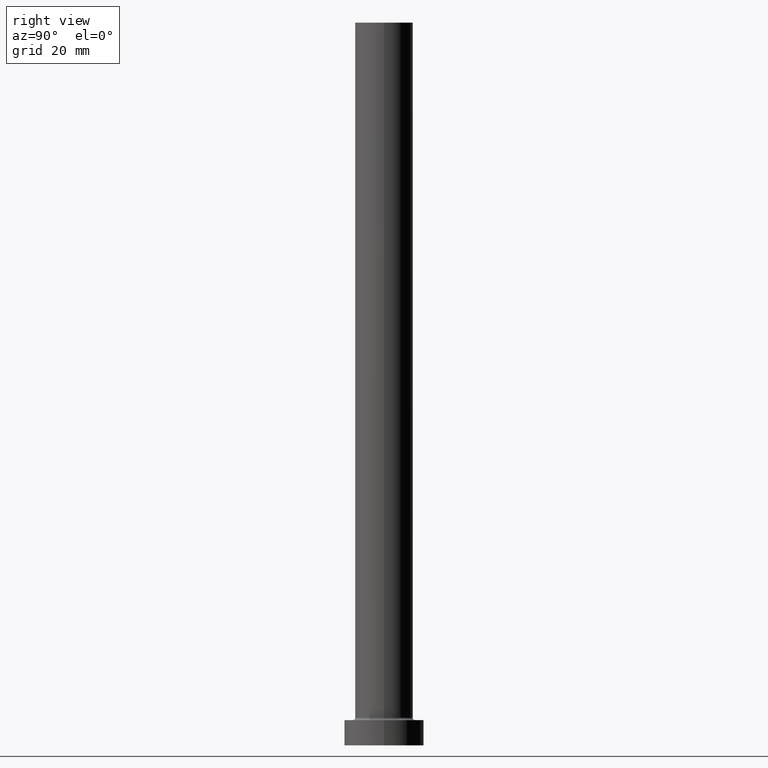
[diagram: clean part render]
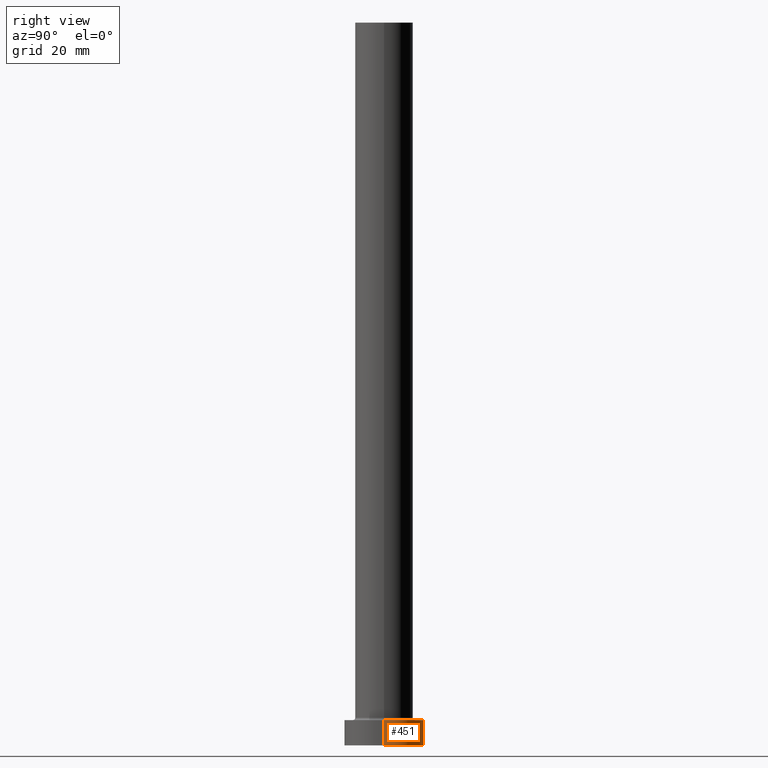
[diagram: same view with one face highlighted and labeled with its STEP entity id]
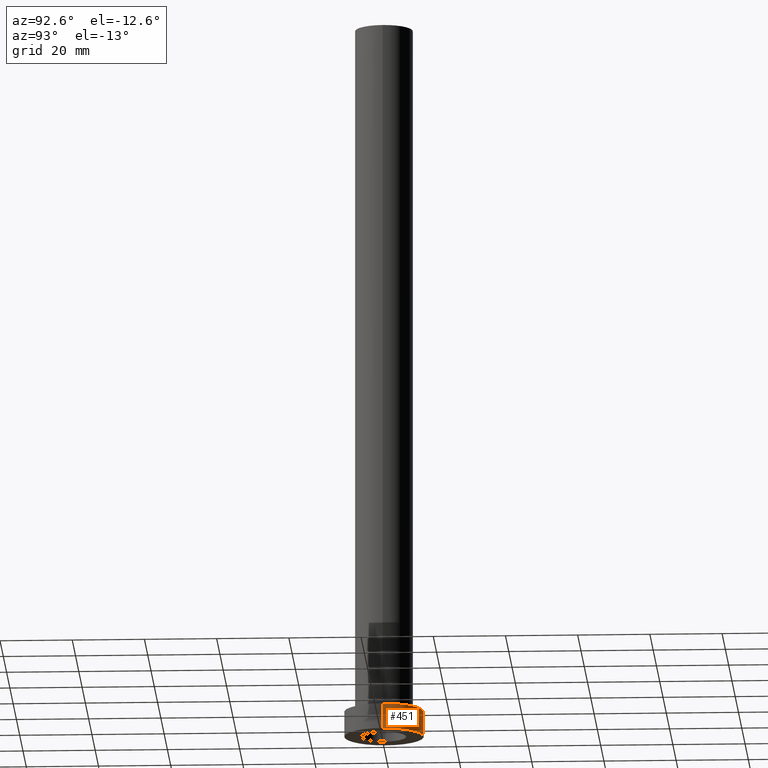
[diagram: same view with one face highlighted and labeled with its STEP entity id]
A machine part, right view. The second image highlights one B-rep face of the part: STEP entity #451.
A second angle (auxiliary view) of the same face is appended — the face is thin or edge-on in the first view.
In plain terms, the highlighted cylindrical surface (partial cylindrical patch) has radius 11 mm, axis along (-0, -0, -1).
Its self-contained STEP definition (entity closure, byte-faithful):
#6 = DIRECTION ( 'NONE',  ( -1.000000000000000000, 0.000000000000000000, 0.000000000000000000 ) ) ;
#22 = DIRECTION ( 'NONE',  ( -0.000000000000000000, -0.000000000000000000, -1.000000000000000000 ) ) ;
#24 = DIRECTION ( 'NONE',  ( 1.000000000000000000, 0.000000000000000000, 0.000000000000000000 ) ) ;
#28 = CIRCLE ( 'NONE', #78, 11.00000000000000000 ) ;
#42 = CYLINDRICAL_SURFACE ( 'NONE', #186, 11.00000000000000000 ) ;
#45 = CARTESIAN_POINT ( 'NONE',  ( 0.000000000000000000, 0.000000000000000000, 7.000000000000000000 ) ) ;
#47 = CARTESIAN_POINT ( 'NONE',  ( 0.000000000000000000, 0.000000000000000000, 0.000000000000000000 ) ) ;
#53 = LINE ( 'NONE', #194, #304 ) ;
#78 = AXIS2_PLACEMENT_3D ( 'NONE', #306, #229, #24 ) ;
#97 = EDGE_LOOP ( 'NONE', ( #324, #193, #155, #303 ) ) ;
#155 = ORIENTED_EDGE ( 'NONE', *, *, #225, .T. ) ;
#156 = CARTESIAN_POINT ( 'NONE',  ( -11.00000000000000000, 0.000000000000000000, 0.000000000000000000 ) ) ;
#165 = EDGE_CURVE ( 'NONE', #282, #166, #53, .T. ) ;
#166 = VERTEX_POINT ( 'NONE', #156 ) ;
#169 = CARTESIAN_POINT ( 'NONE',  ( 11.00000000000000000, 1.347111479062088405E-15, 7.000000000000000000 ) ) ;
#176 = LINE ( 'NONE', #327, #368 ) ;
#186 = AXIS2_PLACEMENT_3D ( 'NONE', #45, #264, #6 ) ;
#190 = VERTEX_POINT ( 'NONE', #169 ) ;
#193 = ORIENTED_EDGE ( 'NONE', *, *, #439, .T. ) ;
#194 = CARTESIAN_POINT ( 'NONE',  ( -11.00000000000000000, 0.000000000000000000, 7.000000000000000000 ) ) ;
#225 = EDGE_CURVE ( 'NONE', #341, #166, #334, .T. ) ;
#229 = DIRECTION ( 'NONE',  ( 0.000000000000000000, 0.000000000000000000, 1.000000000000000000 ) ) ;
#234 = DIRECTION ( 'NONE',  ( 0.000000000000000000, 0.000000000000000000, 1.000000000000000000 ) ) ;
#256 = EDGE_CURVE ( 'NONE', #190, #282, #28, .T. ) ;
#264 = DIRECTION ( 'NONE',  ( -0.000000000000000000, -0.000000000000000000, -1.000000000000000000 ) ) ;
#278 = CARTESIAN_POINT ( 'NONE',  ( -11.00000000000000000, 0.000000000000000000, 7.000000000000000000 ) ) ;
#282 = VERTEX_POINT ( 'NONE', #278 ) ;
#283 = CARTESIAN_POINT ( 'NONE',  ( 11.00000000000000000, 1.347111479062088405E-15, 0.000000000000000000 ) ) ;
#291 = DIRECTION ( 'NONE',  ( -0.000000000000000000, -0.000000000000000000, -1.000000000000000000 ) ) ;
#303 = ORIENTED_EDGE ( 'NONE', *, *, #165, .F. ) ;
#304 = VECTOR ( 'NONE', #22, 1000.000000000000000 ) ;
#306 = CARTESIAN_POINT ( 'NONE',  ( 0.000000000000000000, 0.000000000000000000, 7.000000000000000000 ) ) ;
#313 = DIRECTION ( 'NONE',  ( 1.000000000000000000, 0.000000000000000000, 0.000000000000000000 ) ) ;
#324 = ORIENTED_EDGE ( 'NONE', *, *, #256, .F. ) ;
#327 = CARTESIAN_POINT ( 'NONE',  ( 11.00000000000000000, 1.347111479062088405E-15, 7.000000000000000000 ) ) ;
#334 = CIRCLE ( 'NONE', #409, 11.00000000000000000 ) ;
#341 = VERTEX_POINT ( 'NONE', #283 ) ;
#368 = VECTOR ( 'NONE', #291, 1000.000000000000000 ) ;
#401 = FACE_OUTER_BOUND ( 'NONE', #97, .T. ) ;
#409 = AXIS2_PLACEMENT_3D ( 'NONE', #47, #234, #313 ) ;
#439 = EDGE_CURVE ( 'NONE', #190, #341, #176, .T. ) ;
#451 = ADVANCED_FACE ( 'NONE', ( #401 ), #42, .T. ) ;